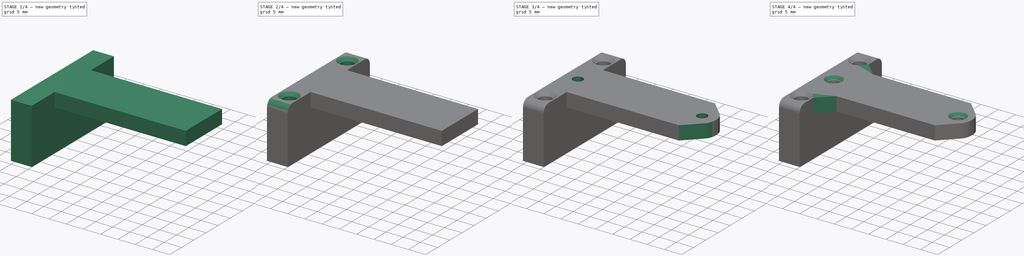
[diagram: build sequence overview — one tinted view per stage of 4, left to right]
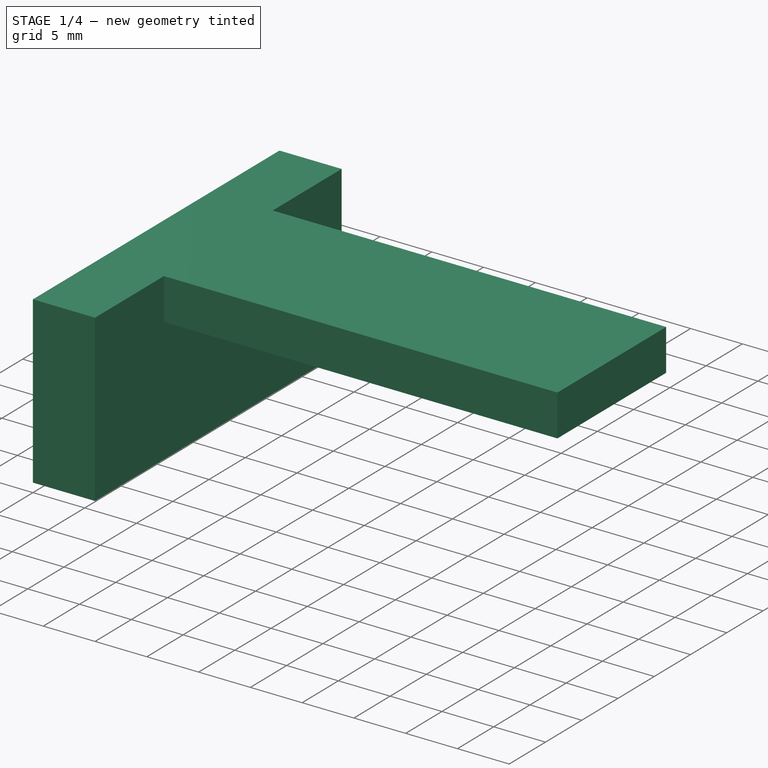
[diagram: stage 1 of 4 — iso view after this stage's code; geometry added in this stage tinted green]
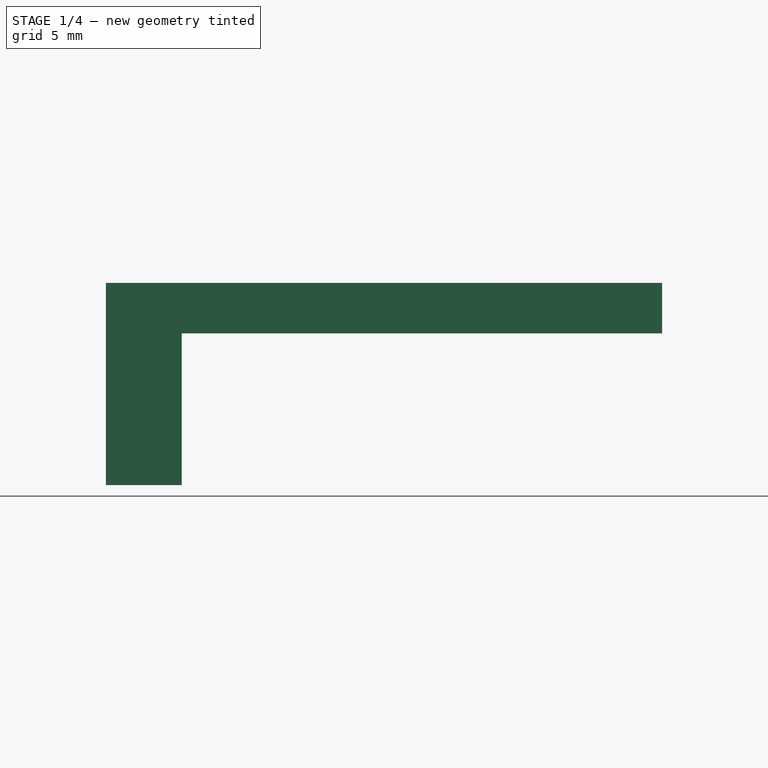
[diagram: stage 1 of 4 — front view after this stage's code; geometry added in this stage tinted green]
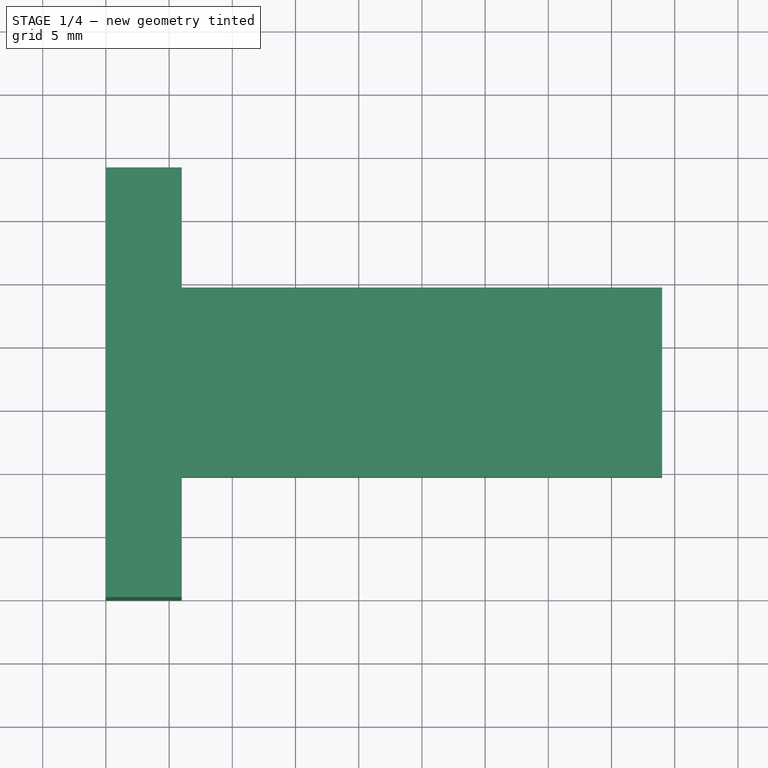
[diagram: stage 1 of 4 — top view after this stage's code; geometry added in this stage tinted green]
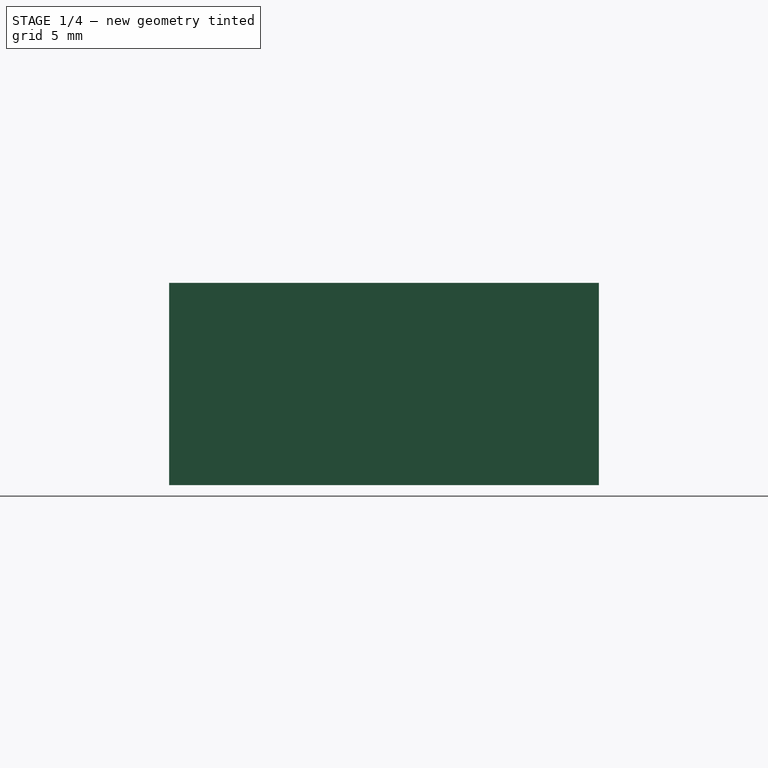
[diagram: stage 1 of 4 — right view after this stage's code; geometry added in this stage tinted green]
FCSTD DOCUMENT  (FreeCAD 0.18R16146 (Git))
Label: doubleDeanClampMount
License: All rights reserved
LicenseURL: http://en.wikipedia.org/wiki/All_rights_reserved
objects: Sketcher::SketchObject×4, PartDesign::Chamfer×4, PartDesign::Pad×2, PartDesign::Pocket×2, PartDesign::Fillet×2, PartDesign::Body×1
note: 19 computed .brp shape members not serialized (recipe doc carries the construction recipe); baked Part::Feature solids carry a one-line shape summary decoded from their .brp

FEATURE [Sketcher::SketchObject] Sketch
  MapMode = 5
  Support = -> [XY_Plane]
  sketch-geometry (4):
    g0: LineSegment StartX=0 StartY=0 StartZ=0 EndX=6 EndY=0 EndZ=0
    g1: LineSegment StartX=6 StartY=0 StartZ=0 EndX=6 EndY=34 EndZ=0
    g2: LineSegment StartX=6 StartY=34 StartZ=0 EndX=0 EndY=34 EndZ=0
    g3: LineSegment StartX=0 StartY=34 StartZ=0 EndX=0 EndY=0 EndZ=0
  constraints (11):
    c: Coincident(g0,g1)
    c: Coincident(g1,g2)
    c: Coincident(g2,g3)
    c: Coincident(g3,g0)
    c: Horizontal(g0)
    c: Horizontal(g2)
    c: Vertical(g1)
    c: Vertical(g3)
    c: Coincident(g0,g-1)
    c: Distance(g2) = 6
    c: Distance(g1) = 34
FEATURE [PartDesign::Pad] Pad
  Length = 12
  Length2 = 100
  Profile = -> Sketch
  Type = 0
FEATURE [Sketcher::SketchObject] Sketch002
  ExternalGeometry = -> [Sketch]
  MapMode = 5
  Placement = pos=(0,0,12) rot=(0,0,1;0rad)
  sketch-geometry (9):
    g0: LineSegment StartX=6 StartY=24.5 StartZ=0 EndX=44 EndY=24.5 EndZ=0
    g1: LineSegment StartX=44 StartY=24.5 StartZ=0 EndX=44 EndY=9.5 EndZ=0
    g2: LineSegment StartX=44 StartY=9.5 StartZ=0 EndX=6 EndY=9.5 EndZ=0
    g3: LineSegment [constr] StartX=-3e-16 StartY=17 StartZ=0 EndX=44 EndY=17 EndZ=0
    g4: LineSegment StartX=-2e-16 StartY=34 StartZ=0 EndX=6 EndY=34 EndZ=0
    g5: LineSegment StartX=6 StartY=34 StartZ=0 EndX=6 EndY=24.5 EndZ=0
    g6: LineSegment StartX=6 StartY=0 StartZ=0 EndX=0 EndY=0 EndZ=0
    g7: LineSegment StartX=-2e-16 StartY=34 StartZ=0 EndX=-2e-16 EndY=0 EndZ=0
    g8: LineSegment StartX=6 StartY=9.5 StartZ=0 EndX=6 EndY=0 EndZ=0
  constraints (24):
    c: Coincident(g0,g1)
    c: Coincident(g1,g2)
    c: Horizontal(g0)
    c: Horizontal(g2)
    c: Vertical(g1)
    c: Distance(g1) = 15
    c: PointOnObject(g3,g1)
    c: Horizontal(g3)
    c: Coincident(g4,g5)
    c: Coincident(g8,g6)
    c: Horizontal(g6)
    c: Vertical(g5)
    c: PointOnObject(g8,g-1)
    c: Coincident(g7,g4)
    c: Coincident(g7,g6)
    c: Vertical(g7)
    c: Coincident(g5,g0)
    c: Tangent(g5,g8)
    c: Symmetric(g2,g0,g3)
    c: PointOnObject(g8,g2)
    c: Distance(g0,g7) = 44
    c: Coincident(g4,g-3)
    c: Coincident(g4,g-3)
    c: Symmetric(g4,g6,g3)
FEATURE [PartDesign::Pad] Pad001
  BaseFeature = -> Pad
  Length = 4
  Length2 = 100
  Profile = -> Sketch002
  Type = 0
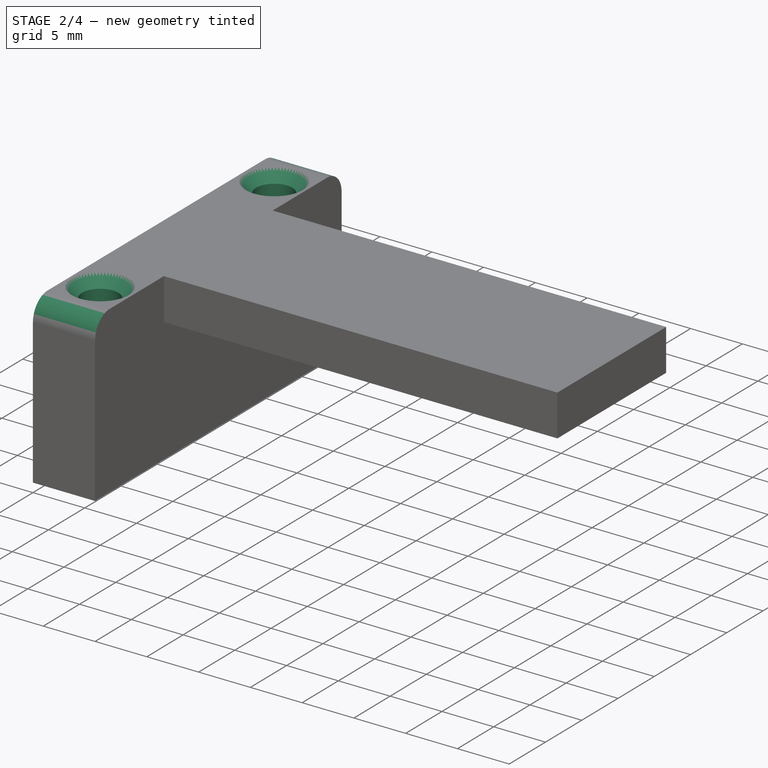
[diagram: stage 2 of 4 — iso view after this stage's code; geometry added in this stage tinted green]
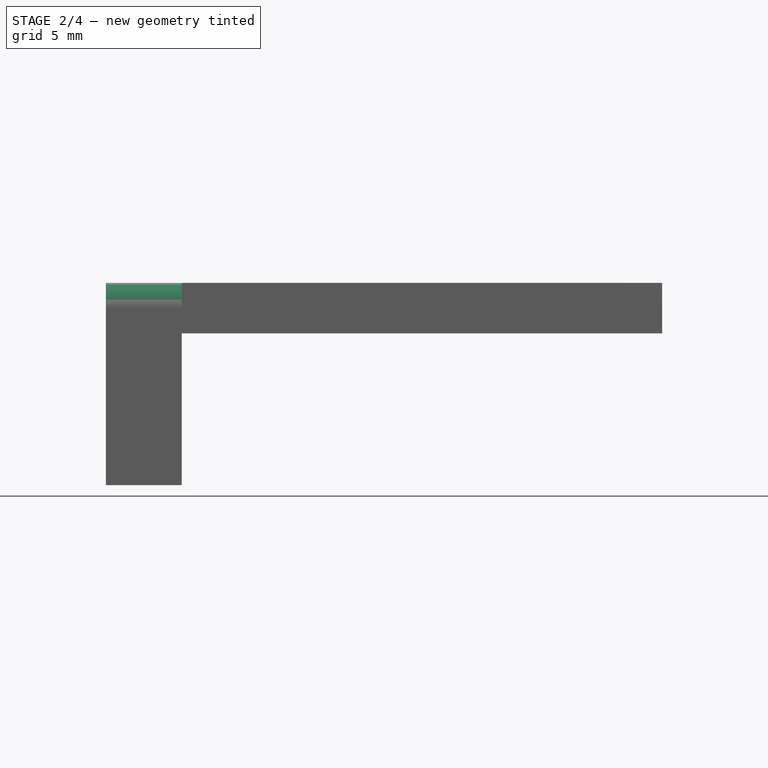
[diagram: stage 2 of 4 — front view after this stage's code; geometry added in this stage tinted green]
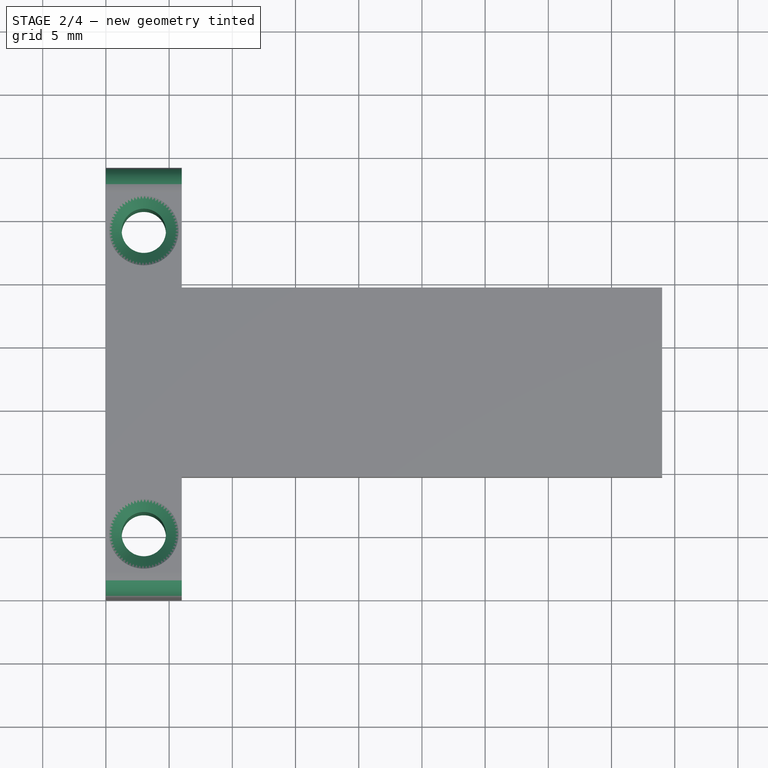
[diagram: stage 2 of 4 — top view after this stage's code; geometry added in this stage tinted green]
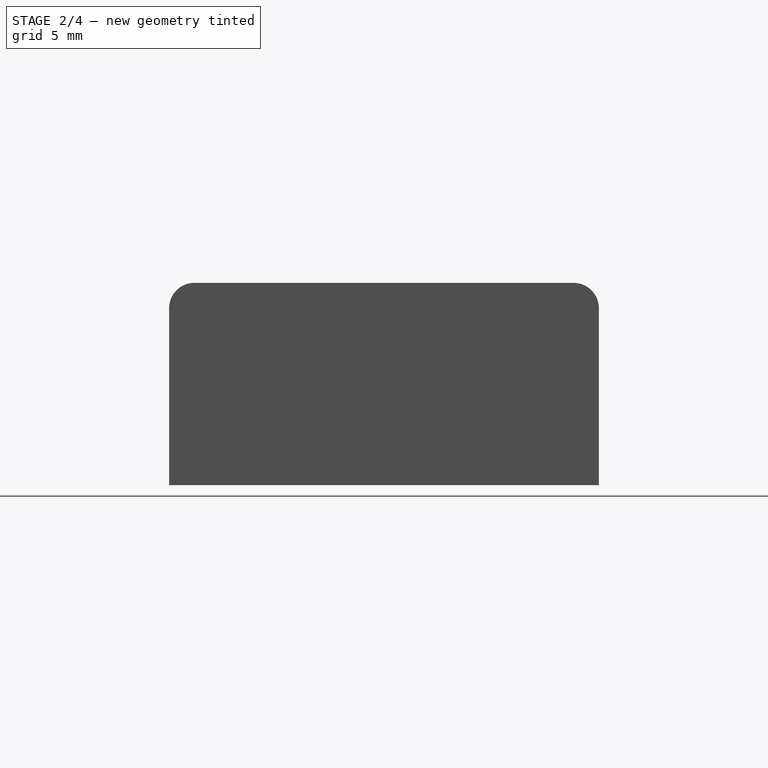
[diagram: stage 2 of 4 — right view after this stage's code; geometry added in this stage tinted green]
FEATURE [Sketcher::SketchObject] Sketch003
  ExternalGeometry = -> [Pad001]
  MapMode = 5
  Placement = pos=(0,0,16) rot=(0,0,1;0rad)
  Support = -> [Pad001]
  sketch-geometry (4):
    g0: LineSegment [constr] StartX=3 StartY=34 StartZ=0 EndX=3 EndY=0 EndZ=0
    g1: Circle CenterX=3 CenterY=29 CenterZ=0 NormalX=0 NormalY=0 NormalZ=1 AngleXU=0 Radius=1.75
    g2: Circle CenterX=3 CenterY=5 CenterZ=0 NormalX=0 NormalY=0 NormalZ=1 AngleXU=0 Radius=1.75
    g3: LineSegment [constr] StartX=0 StartY=17 StartZ=0 EndX=3 EndY=17 EndZ=0
  constraints (11):
    c: PointOnObject(g0,g-1)
    c: Vertical(g0)
    c: Symmetric(g-3,g-3,g0)
    c: PointOnObject(g1,g0)
    c: Radius(g1) = 1.75
    c: Equal(g1,g2) = 1.75
    c: PointOnObject(g2,g0)
    c: Distance(g1,g2) = 24
    c: Horizontal(g3)
    c: Symmetric(g-3,g-1,g3)
    c: Symmetric(g1,g2,g3)
FEATURE [PartDesign::Pocket] Pocket
  BaseFeature = -> Pad001
  Length = 5
  Length2 = 100
  Profile = -> Sketch003
  Type = 1
FEATURE [PartDesign::Fillet] Fillet
  Base = -> Pocket [Edge18,Edge34]
  BaseFeature = -> Pocket
  Radius = 2
FEATURE [PartDesign::Chamfer] Chamfer
  Base = -> Fillet [Edge28,Edge27]
  BaseFeature = -> Fillet
  Size = 1
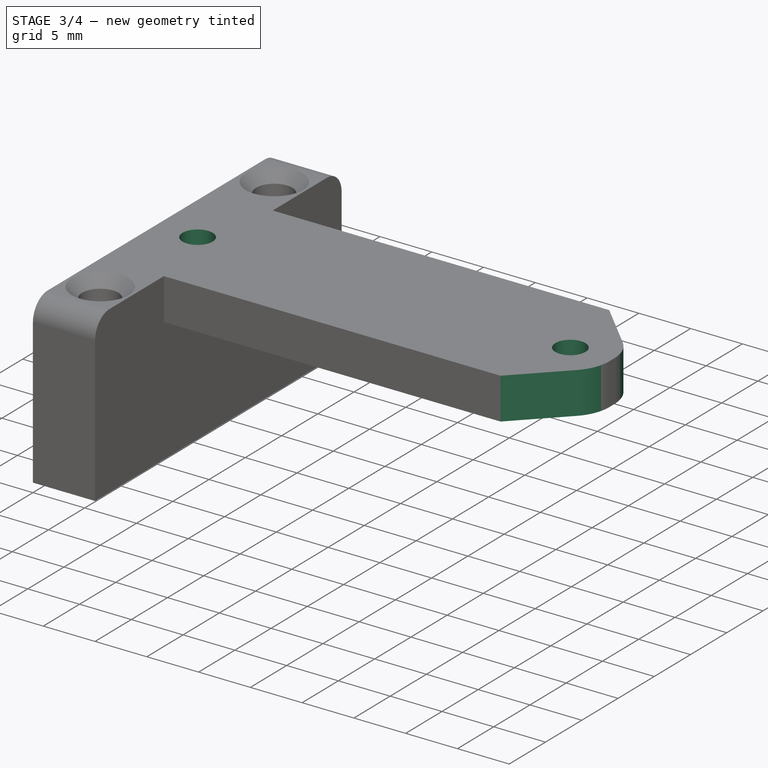
[diagram: stage 3 of 4 — iso view after this stage's code; geometry added in this stage tinted green]
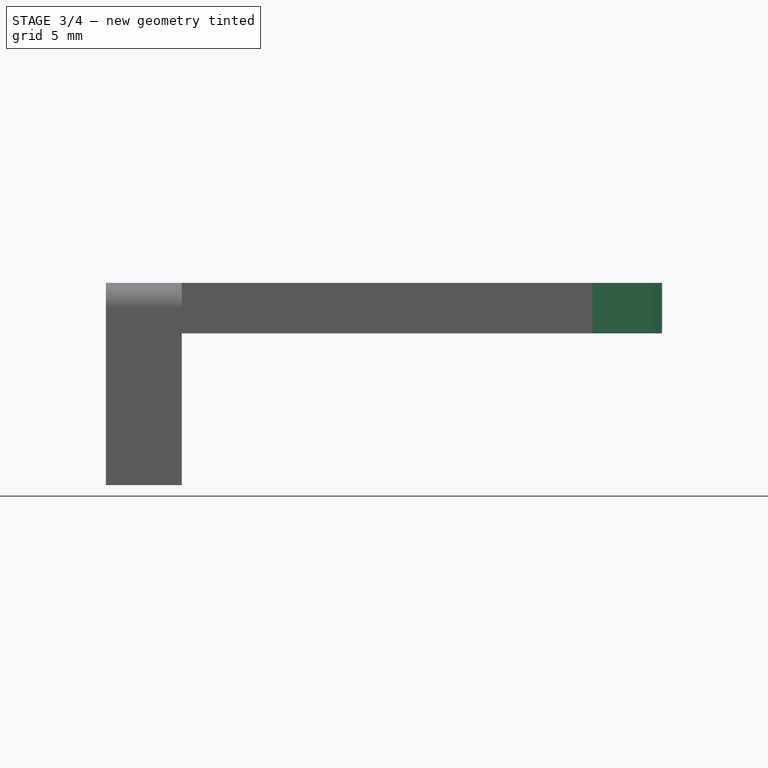
[diagram: stage 3 of 4 — front view after this stage's code; geometry added in this stage tinted green]
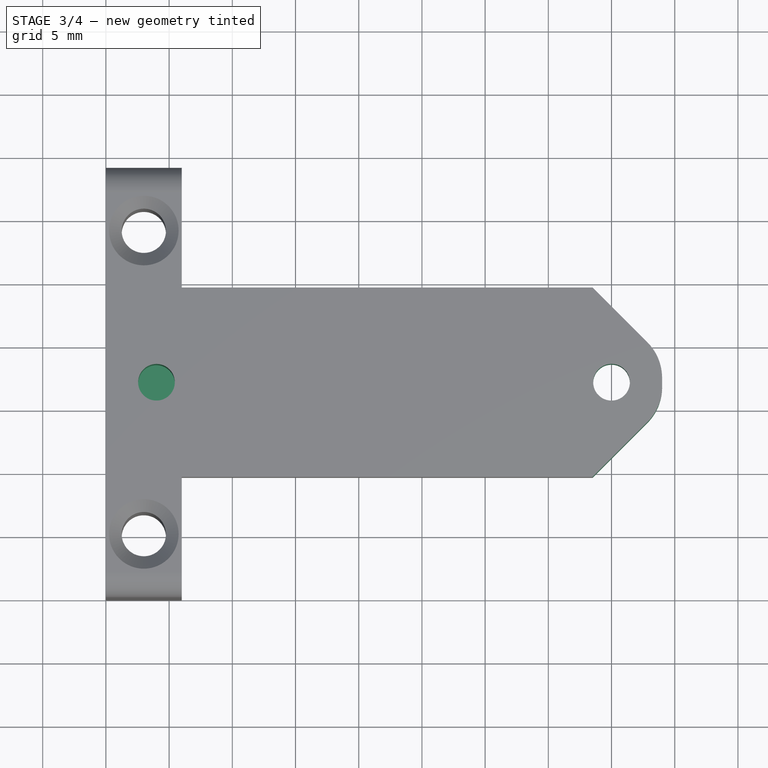
[diagram: stage 3 of 4 — top view after this stage's code; geometry added in this stage tinted green]
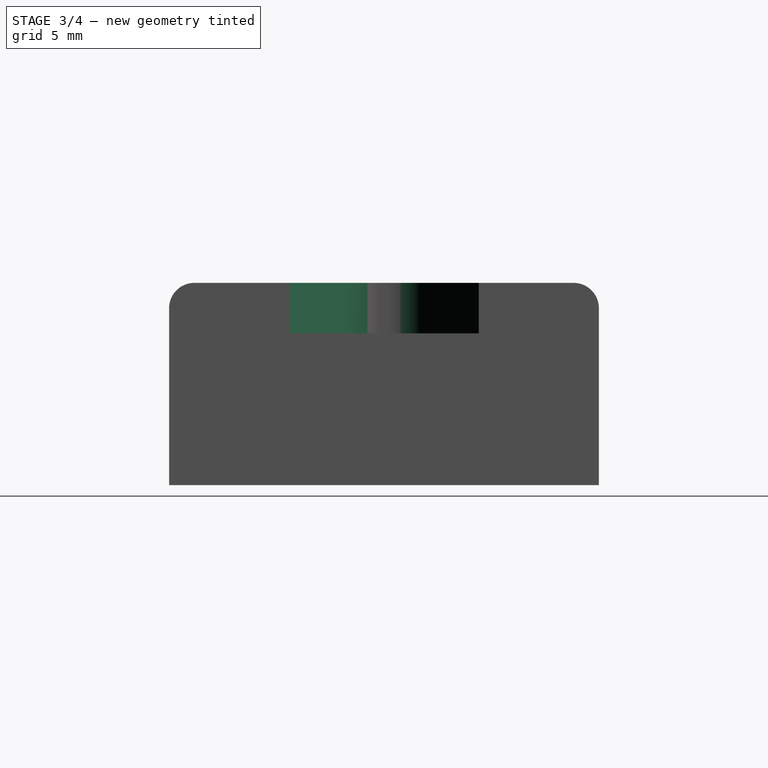
[diagram: stage 3 of 4 — right view after this stage's code; geometry added in this stage tinted green]
FEATURE [Sketcher::SketchObject] Sketch004
  ExternalGeometry = -> [Chamfer]
  MapMode = 5
  Placement = pos=(0,0,16) rot=(0,0,1;0rad)
  Support = -> [Chamfer]
  sketch-geometry (5):
    g0: LineSegment [constr] StartX=0 StartY=17 StartZ=0 EndX=44 EndY=17 EndZ=0
    g1: Circle CenterX=4 CenterY=17 CenterZ=0 NormalX=0 NormalY=0 NormalZ=1 AngleXU=0 Radius=1.45
    g2: Circle CenterX=40 CenterY=17 CenterZ=0 NormalX=0 NormalY=0 NormalZ=1 AngleXU=0 Radius=1.45
    g3: LineSegment [constr] StartX=22 StartY=24.5 StartZ=0 EndX=22 EndY=9.5 EndZ=0
    g4: LineSegment [constr] StartX=6 StartY=24.5 StartZ=0 EndX=0 EndY=24.5 EndZ=0
  constraints (14):
    c: PointOnObject(g0,g-2)
    c: Horizontal(g0)
    c: Symmetric(g-5,g-5,g0)
    c: PointOnObject(g1,g0)
    c: Radius(g1) = 1.45
    c: Equal(g1,g2) = 1.45
    c: PointOnObject(g2,g0)
    c: Distance(g2,g1) = 36
    c: PointOnObject(g3,g-3)
    c: Coincident(g4,g-3)
    c: PointOnObject(g4,g-6)
    c: Symmetric(g4,g-5,g3)
    c: PointOnObject(g3,g-4)
    c: Symmetric(g1,g2,g3)
FEATURE [PartDesign::Pocket] Pocket001
  BaseFeature = -> Chamfer
  Length = 6
  Length2 = 100
  Profile = -> Sketch004
  Type = 0
FEATURE [PartDesign::Chamfer] Chamfer001
  Base = -> Pocket001 [Edge30,Edge28]
  BaseFeature = -> Pocket001
  Size = 5.5
FEATURE [PartDesign::Fillet] Fillet001
  Base = -> Chamfer001 [Edge24,Edge19]
  BaseFeature = -> Chamfer001
  Radius = 4
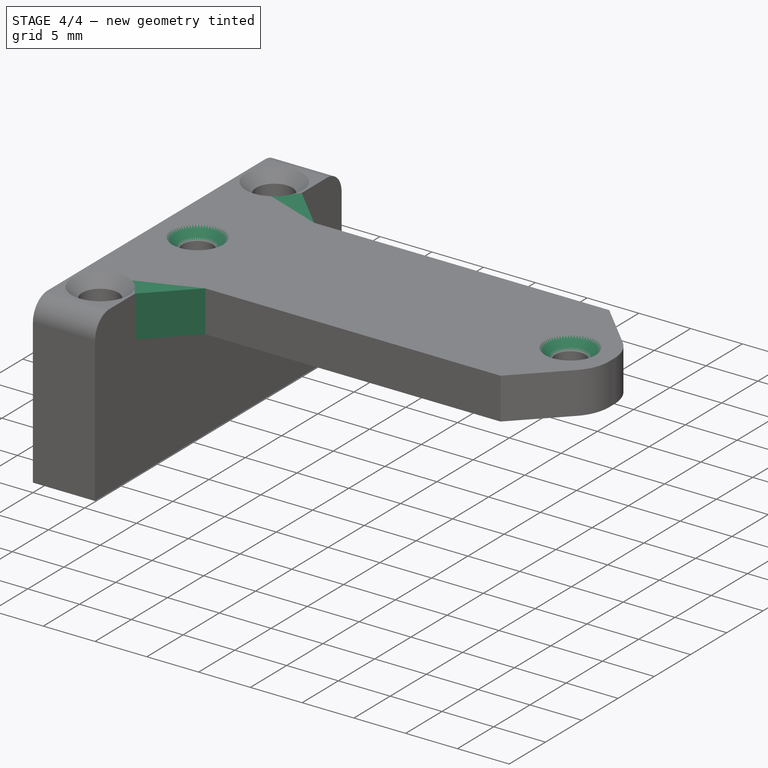
[diagram: stage 4 of 4 — iso view after this stage's code; geometry added in this stage tinted green]
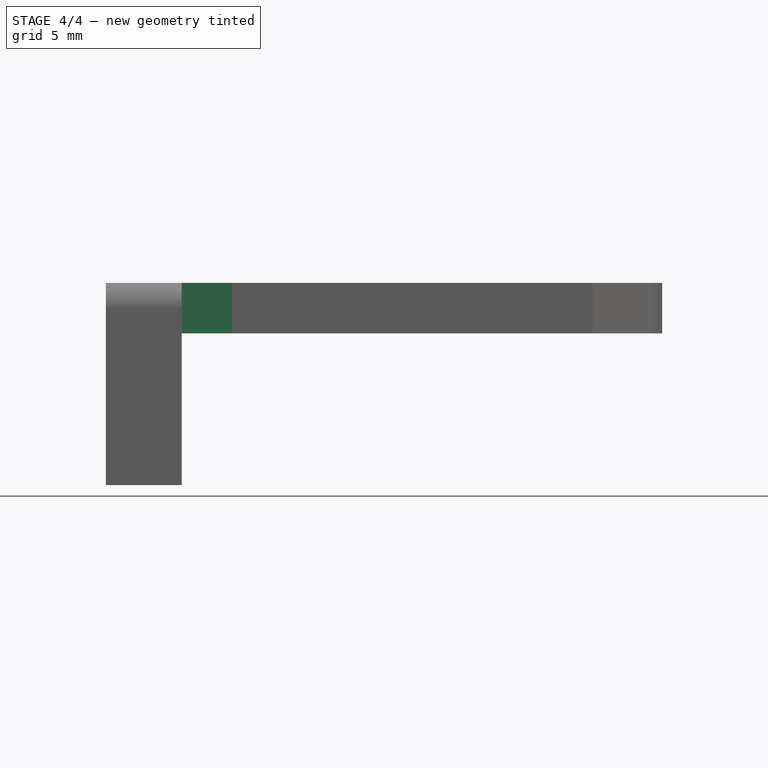
[diagram: stage 4 of 4 — front view after this stage's code; geometry added in this stage tinted green]
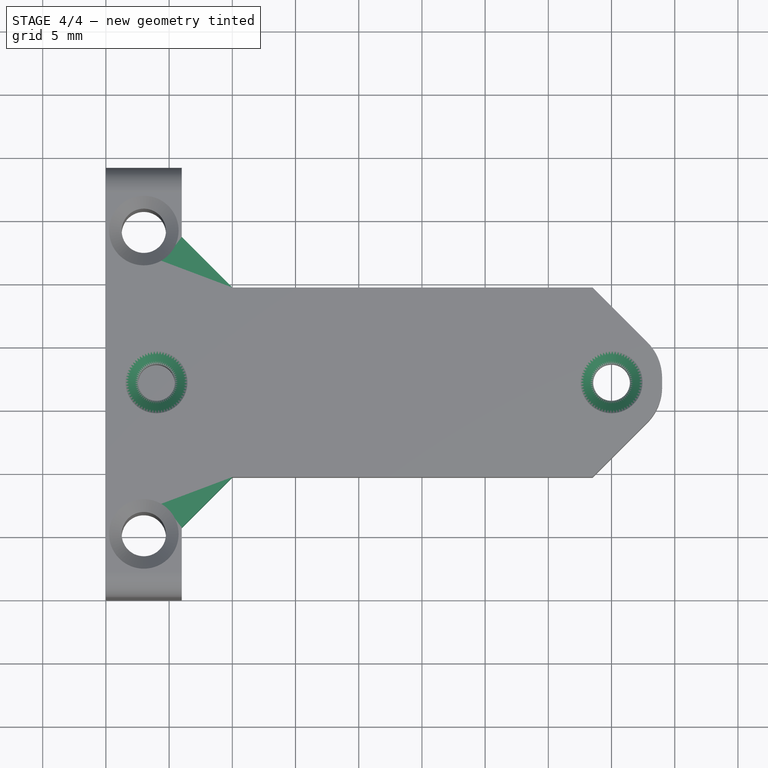
[diagram: stage 4 of 4 — top view after this stage's code; geometry added in this stage tinted green]
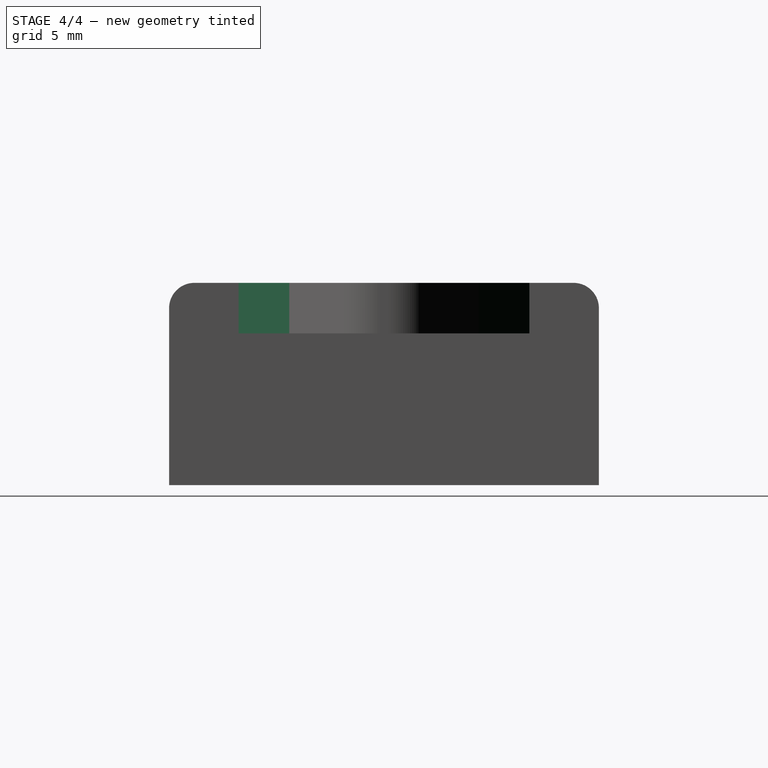
[diagram: stage 4 of 4 — right view after this stage's code; geometry added in this stage tinted green]
FEATURE [PartDesign::Chamfer] Chamfer002
  Base = -> Fillet001 [Edge40,Edge23]
  BaseFeature = -> Fillet001
  Size = 4
FEATURE [PartDesign::Chamfer] Chamfer003
  Base = -> Chamfer002 [Edge16,Edge17]
  BaseFeature = -> Chamfer002
  Size = 1
FEATURE [PartDesign::Body] Body
  Group = -> [Sketch,Pad,Sketch002,Pad001,Sketch003,Pocket,Fillet,Chamfer,Sketch004,Pocket001,Chamfer001,Fillet001,Chamfer002,Chamfer003]
  Origin = -> Origin
  Tip = -> Chamfer003
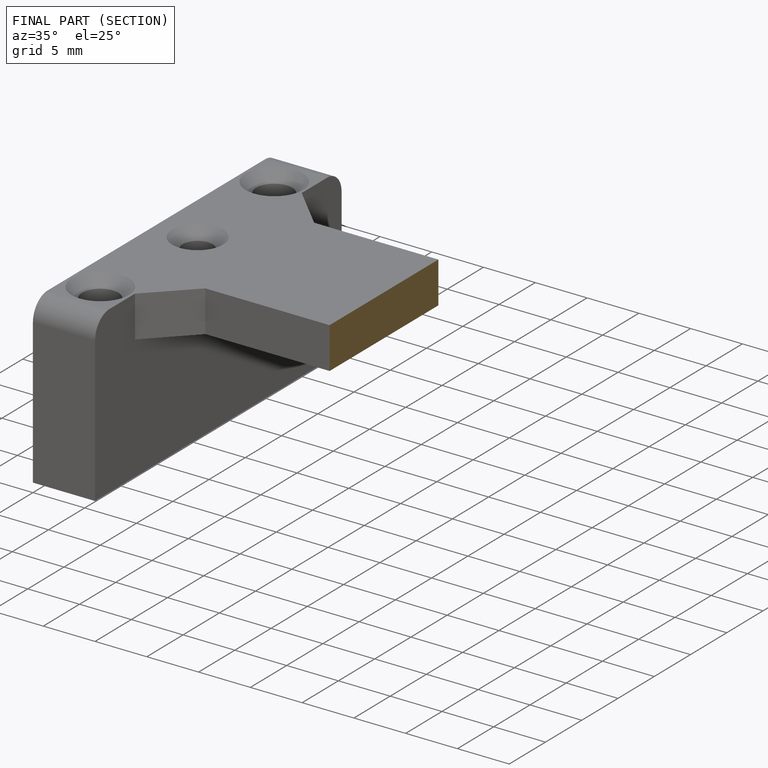
[diagram: finished part — half-section view (interior)]
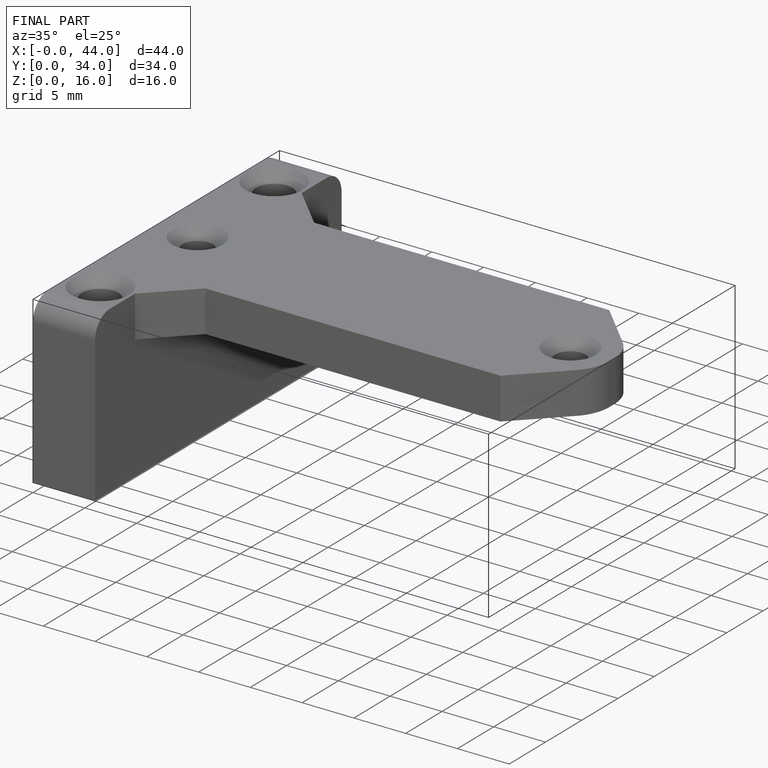
[diagram: finished part — iso view with bounding-box wireframe]
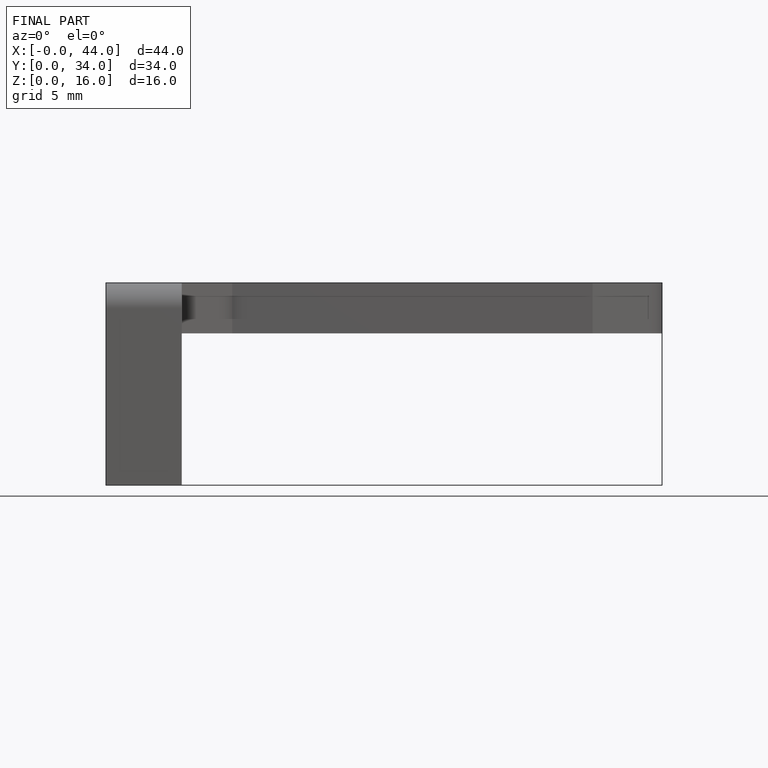
[diagram: finished part — front view with bounding-box wireframe]
